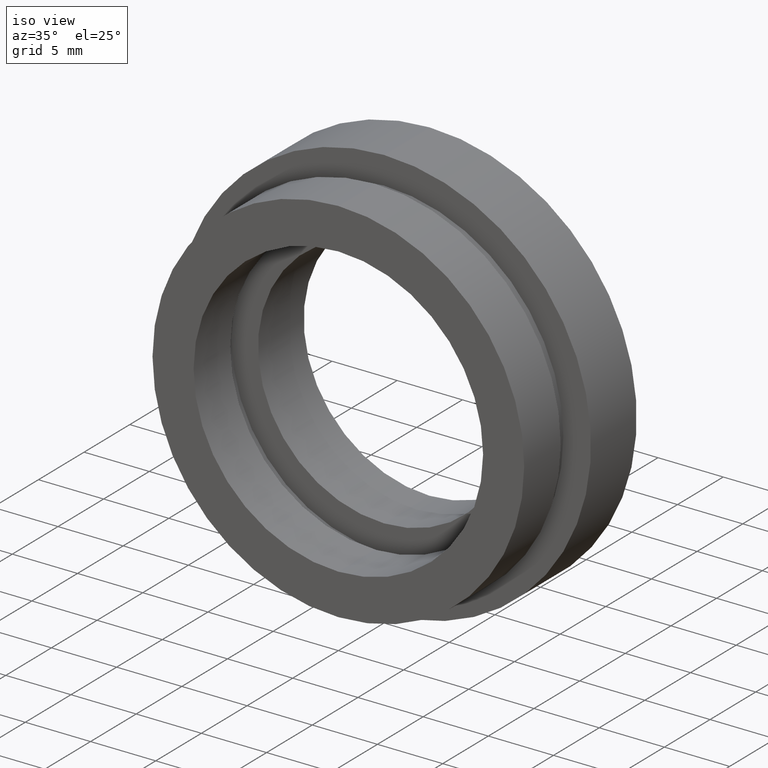
[diagram: clean part render]
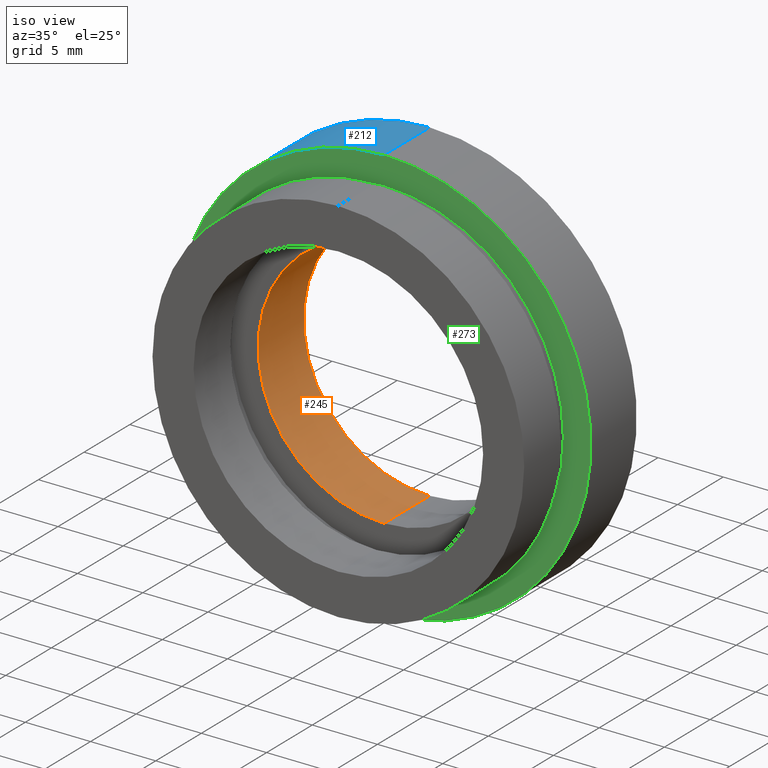
[diagram: same view with three faces highlighted in distinct colors, each labeled with its STEP entity id]
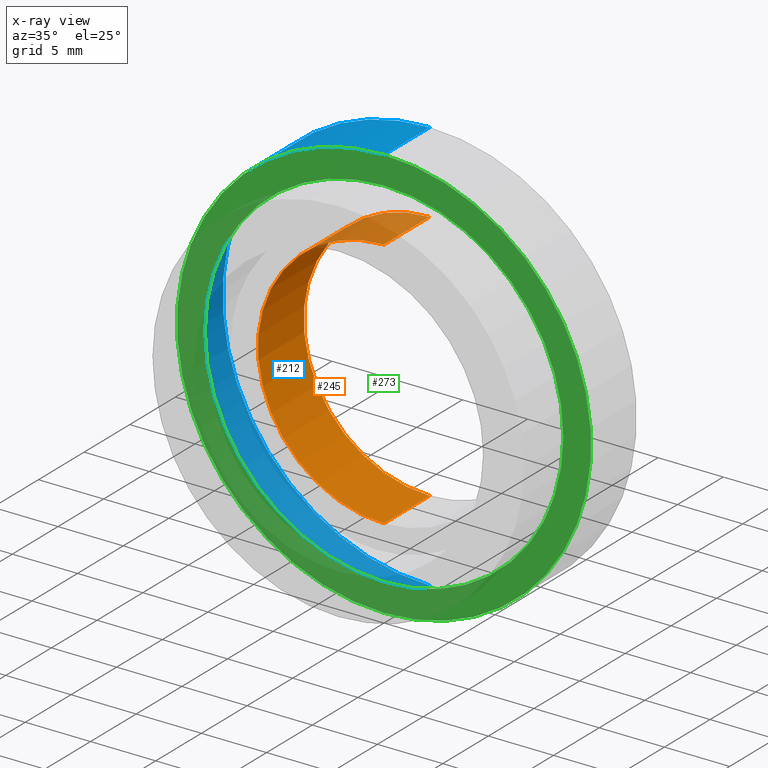
[diagram: x-ray of the same camera — body ghosted, the three highlighted faces saturated]
A machine part, iso view with three faces highlighted in distinct colors.
The next image is the same camera in x-ray (body ghosted, the three faces saturated) — at least one of them is partly hidden behind the body in this view.
Their STEP definitions:

[orange] entity #245 — the highlighted cylindrical surface (partial cylindrical patch) has radius 9.66 mm, axis along (-0, 1, -0).
#2 = ORIENTED_EDGE ( 'NONE', *, *, #137, .T. ) ;
#9 = VERTEX_POINT ( 'NONE', #18 ) ;
#18 = CARTESIAN_POINT ( 'NONE',  ( 0.0000000000000000000, 9.999999999999998200, 9.660000000000000100 ) ) ;
#37 = ORIENTED_EDGE ( 'NONE', *, *, #304, .T. ) ;
#41 = EDGE_CURVE ( 'NONE', #373, #521, #420, .T. ) ;
#58 = LINE ( 'NONE', #429, #509 ) ;
#67 = DIRECTION ( 'NONE',  ( -0.0000000000000000000, 1.000000000000000000, -0.0000000000000000000 ) ) ;
#83 = VERTEX_POINT ( 'NONE', #217 ) ;
#108 = CIRCLE ( 'NONE', #311, 9.660000000000000100 ) ;
#137 = EDGE_CURVE ( 'NONE', #83, #9, #108, .T. ) ;
#167 = DIRECTION ( 'NONE',  ( 0.0000000000000000000, 0.0000000000000000000, 1.000000000000000000 ) ) ;
#186 = CARTESIAN_POINT ( 'NONE',  ( 0.0000000000000000000, 13.74468085106383300, 0.0000000000000000000 ) ) ;
#197 = CARTESIAN_POINT ( 'NONE',  ( 1.183008807976343300E-015, 5.000000000000000900, -9.660000000000000100 ) ) ;
#199 = AXIS2_PLACEMENT_3D ( 'NONE', #485, #324, #167 ) ;
#215 = CARTESIAN_POINT ( 'NONE',  ( 1.183008807976343300E-015, 13.74468085106383300, -9.660000000000000100 ) ) ;
#217 = CARTESIAN_POINT ( 'NONE',  ( 1.183008807976343300E-015, 9.999999999999998200, -9.660000000000000100 ) ) ;
#224 = VECTOR ( 'NONE', #363, 1000.000000000000000 ) ;
#245 = ADVANCED_FACE ( 'NONE', ( #424 ), #523, .F. ) ;
#291 = ORIENTED_EDGE ( 'NONE', *, *, #41, .F. ) ;
#304 = EDGE_CURVE ( 'NONE', #373, #83, #612, .T. ) ;
#311 = AXIS2_PLACEMENT_3D ( 'NONE', #545, #329, #437 ) ;
#324 = DIRECTION ( 'NONE',  ( -0.0000000000000000000, 1.000000000000000000, -0.0000000000000000000 ) ) ;
#329 = DIRECTION ( 'NONE',  ( -0.0000000000000000000, 1.000000000000000000, -0.0000000000000000000 ) ) ;
#336 = DIRECTION ( 'NONE',  ( -0.0000000000000000000, 1.000000000000000000, -0.0000000000000000000 ) ) ;
#363 = DIRECTION ( 'NONE',  ( -0.0000000000000000000, 1.000000000000000000, -0.0000000000000000000 ) ) ;
#373 = VERTEX_POINT ( 'NONE', #197 ) ;
#389 = ORIENTED_EDGE ( 'NONE', *, *, #578, .F. ) ;
#420 = CIRCLE ( 'NONE', #199, 9.660000000000000100 ) ;
#424 = FACE_OUTER_BOUND ( 'NONE', #495, .T. ) ;
#429 = CARTESIAN_POINT ( 'NONE',  ( 0.0000000000000000000, 13.74468085106383300, 9.660000000000000100 ) ) ;
#430 = AXIS2_PLACEMENT_3D ( 'NONE', #186, #67, #584 ) ;
#437 = DIRECTION ( 'NONE',  ( 0.0000000000000000000, 0.0000000000000000000, 1.000000000000000000 ) ) ;
#485 = CARTESIAN_POINT ( 'NONE',  ( 0.0000000000000000000, 5.000000000000000900, 0.0000000000000000000 ) ) ;
#495 = EDGE_LOOP ( 'NONE', ( #291, #37, #2, #389 ) ) ;
#509 = VECTOR ( 'NONE', #336, 1000.000000000000000 ) ;
#521 = VERTEX_POINT ( 'NONE', #548 ) ;
#523 = CYLINDRICAL_SURFACE ( 'NONE', #430, 9.660000000000000100 ) ;
#545 = CARTESIAN_POINT ( 'NONE',  ( 0.0000000000000000000, 9.999999999999998200, 0.0000000000000000000 ) ) ;
#548 = CARTESIAN_POINT ( 'NONE',  ( 0.0000000000000000000, 5.000000000000000900, 9.660000000000000100 ) ) ;
#578 = EDGE_CURVE ( 'NONE', #521, #9, #58, .T. ) ;
#584 = DIRECTION ( 'NONE',  ( 0.0000000000000000000, 0.0000000000000000000, 1.000000000000000000 ) ) ;
#612 = LINE ( 'NONE', #215, #224 ) ;

[blue] entity #212 — the highlighted cylindrical surface (partial cylindrical patch) has radius 15.875 mm, axis along (-0, 1, -0).
#6 = VECTOR ( 'NONE', #512, 1000.000000000000000 ) ;
#26 = EDGE_CURVE ( 'NONE', #592, #357, #28, .T. ) ;
#28 = LINE ( 'NONE', #285, #243 ) ;
#62 = DIRECTION ( 'NONE',  ( -0.0000000000000000000, 1.000000000000000000, -0.0000000000000000000 ) ) ;
#74 = CARTESIAN_POINT ( 'NONE',  ( 0.0000000000000000000, 10.00000000000000000, 15.87500000000000000 ) ) ;
#126 = CARTESIAN_POINT ( 'NONE',  ( 1.944126793646423200E-015, 13.74468085106383300, -15.87500000000000000 ) ) ;
#129 = EDGE_LOOP ( 'NONE', ( #503, #541, #246, #151 ) ) ;
#130 = LINE ( 'NONE', #126, #6 ) ;
#134 = CARTESIAN_POINT ( 'NONE',  ( 1.944126793646423200E-015, 10.00000000000000000, -15.87500000000000000 ) ) ;
#151 = ORIENTED_EDGE ( 'NONE', *, *, #230, .F. ) ;
#152 = CARTESIAN_POINT ( 'NONE',  ( 0.0000000000000000000, 13.74468085106383300, 0.0000000000000000000 ) ) ;
#153 = DIRECTION ( 'NONE',  ( 0.0000000000000000000, 0.0000000000000000000, 1.000000000000000000 ) ) ;
#187 = AXIS2_PLACEMENT_3D ( 'NONE', #152, #213, #552 ) ;
#211 = VERTEX_POINT ( 'NONE', #134 ) ;
#212 = ADVANCED_FACE ( 'NONE', ( #299 ), #413, .T. ) ;
#213 = DIRECTION ( 'NONE',  ( -0.0000000000000000000, 1.000000000000000000, -0.0000000000000000000 ) ) ;
#230 = EDGE_CURVE ( 'NONE', #211, #357, #294, .T. ) ;
#243 = VECTOR ( 'NONE', #62, 1000.000000000000000 ) ;
#246 = ORIENTED_EDGE ( 'NONE', *, *, #26, .T. ) ;
#278 = CIRCLE ( 'NONE', #334, 15.87500000000000000 ) ;
#279 = CARTESIAN_POINT ( 'NONE',  ( 0.0000000000000000000, 5.000000000000000900, 15.87500000000000000 ) ) ;
#285 = CARTESIAN_POINT ( 'NONE',  ( 0.0000000000000000000, 13.74468085106383300, 15.87500000000000000 ) ) ;
#294 = CIRCLE ( 'NONE', #475, 15.87500000000000000 ) ;
#299 = FACE_OUTER_BOUND ( 'NONE', #129, .T. ) ;
#334 = AXIS2_PLACEMENT_3D ( 'NONE', #498, #490, #153 ) ;
#357 = VERTEX_POINT ( 'NONE', #74 ) ;
#368 = EDGE_CURVE ( 'NONE', #615, #211, #130, .T. ) ;
#398 = CARTESIAN_POINT ( 'NONE',  ( 1.944126793646423200E-015, 5.000000000000000900, -15.87500000000000000 ) ) ;
#413 = CYLINDRICAL_SURFACE ( 'NONE', #187, 15.87500000000000000 ) ;
#449 = EDGE_CURVE ( 'NONE', #615, #592, #278, .T. ) ;
#464 = DIRECTION ( 'NONE',  ( 0.0000000000000000000, 0.0000000000000000000, 1.000000000000000000 ) ) ;
#475 = AXIS2_PLACEMENT_3D ( 'NONE', #588, #590, #464 ) ;
#490 = DIRECTION ( 'NONE',  ( -0.0000000000000000000, 1.000000000000000000, -0.0000000000000000000 ) ) ;
#498 = CARTESIAN_POINT ( 'NONE',  ( 0.0000000000000000000, 5.000000000000000900, 0.0000000000000000000 ) ) ;
#503 = ORIENTED_EDGE ( 'NONE', *, *, #368, .F. ) ;
#512 = DIRECTION ( 'NONE',  ( -0.0000000000000000000, 1.000000000000000000, -0.0000000000000000000 ) ) ;
#541 = ORIENTED_EDGE ( 'NONE', *, *, #449, .T. ) ;
#552 = DIRECTION ( 'NONE',  ( 0.0000000000000000000, 0.0000000000000000000, 1.000000000000000000 ) ) ;
#588 = CARTESIAN_POINT ( 'NONE',  ( 0.0000000000000000000, 10.00000000000000000, 0.0000000000000000000 ) ) ;
#590 = DIRECTION ( 'NONE',  ( -0.0000000000000000000, 1.000000000000000000, -0.0000000000000000000 ) ) ;
#592 = VERTEX_POINT ( 'NONE', #279 ) ;
#615 = VERTEX_POINT ( 'NONE', #398 ) ;

[green] entity #273 — the highlighted planar face has unit normal (-0, 1, 0).
#12 = AXIS2_PLACEMENT_3D ( 'NONE', #497, #574, #176 ) ;
#22 = CIRCLE ( 'NONE', #177, 15.87500000000000000 ) ;
#23 = EDGE_LOOP ( 'NONE', ( #30, #610 ) ) ;
#30 = ORIENTED_EDGE ( 'NONE', *, *, #565, .T. ) ;
#34 = CIRCLE ( 'NONE', #620, 13.75000000000000000 ) ;
#46 = ORIENTED_EDGE ( 'NONE', *, *, #63, .F. ) ;
#63 = EDGE_CURVE ( 'NONE', #592, #615, #22, .T. ) ;
#66 = PLANE ( 'NONE',  #12 ) ;
#71 = DIRECTION ( 'NONE',  ( -0.0000000000000000000, 1.000000000000000000, -0.0000000000000000000 ) ) ;
#92 = EDGE_CURVE ( 'NONE', #218, #390, #397, .T. ) ;
#150 = DIRECTION ( 'NONE',  ( 0.0000000000000000000, 0.0000000000000000000, 1.000000000000000000 ) ) ;
#153 = DIRECTION ( 'NONE',  ( 0.0000000000000000000, 0.0000000000000000000, 1.000000000000000000 ) ) ;
#176 = DIRECTION ( 'NONE',  ( 0.0000000000000000000, 0.0000000000000000000, 1.000000000000000000 ) ) ;
#177 = AXIS2_PLACEMENT_3D ( 'NONE', #576, #195, #216 ) ;
#181 = ORIENTED_EDGE ( 'NONE', *, *, #449, .F. ) ;
#195 = DIRECTION ( 'NONE',  ( -0.0000000000000000000, 1.000000000000000000, -0.0000000000000000000 ) ) ;
#207 = AXIS2_PLACEMENT_3D ( 'NONE', #208, #71, #150 ) ;
#208 = CARTESIAN_POINT ( 'NONE',  ( 0.0000000000000000000, 4.999999999999999100, 0.0000000000000000000 ) ) ;
#216 = DIRECTION ( 'NONE',  ( 0.0000000000000000000, 0.0000000000000000000, 1.000000000000000000 ) ) ;
#218 = VERTEX_POINT ( 'NONE', #606 ) ;
#237 = CARTESIAN_POINT ( 'NONE',  ( 0.0000000000000000000, 4.999999999999999100, 13.75000000000000000 ) ) ;
#273 = ADVANCED_FACE ( 'NONE', ( #338, #549 ), #66, .F. ) ;
#278 = CIRCLE ( 'NONE', #334, 15.87500000000000000 ) ;
#279 = CARTESIAN_POINT ( 'NONE',  ( 0.0000000000000000000, 5.000000000000000900, 15.87500000000000000 ) ) ;
#334 = AXIS2_PLACEMENT_3D ( 'NONE', #498, #490, #153 ) ;
#338 = FACE_OUTER_BOUND ( 'NONE', #403, .T. ) ;
#382 = DIRECTION ( 'NONE',  ( 0.0000000000000000000, 0.0000000000000000000, 1.000000000000000000 ) ) ;
#390 = VERTEX_POINT ( 'NONE', #237 ) ;
#397 = CIRCLE ( 'NONE', #207, 13.75000000000000000 ) ;
#398 = CARTESIAN_POINT ( 'NONE',  ( 1.944126793646423200E-015, 5.000000000000000900, -15.87500000000000000 ) ) ;
#403 = EDGE_LOOP ( 'NONE', ( #46, #181 ) ) ;
#449 = EDGE_CURVE ( 'NONE', #615, #592, #278, .T. ) ;
#490 = DIRECTION ( 'NONE',  ( -0.0000000000000000000, 1.000000000000000000, -0.0000000000000000000 ) ) ;
#497 = CARTESIAN_POINT ( 'NONE',  ( 15.87500000000000000, 4.999999999999999100, 0.0000000000000000000 ) ) ;
#498 = CARTESIAN_POINT ( 'NONE',  ( 0.0000000000000000000, 5.000000000000000900, 0.0000000000000000000 ) ) ;
#526 = DIRECTION ( 'NONE',  ( -0.0000000000000000000, 1.000000000000000000, -0.0000000000000000000 ) ) ;
#533 = CARTESIAN_POINT ( 'NONE',  ( 0.0000000000000000000, 4.999999999999999100, 0.0000000000000000000 ) ) ;
#549 = FACE_BOUND ( 'NONE', #23, .T. ) ;
#565 = EDGE_CURVE ( 'NONE', #390, #218, #34, .T. ) ;
#574 = DIRECTION ( 'NONE',  ( -0.0000000000000000000, 1.000000000000000000, 0.0000000000000000000 ) ) ;
#576 = CARTESIAN_POINT ( 'NONE',  ( 0.0000000000000000000, 5.000000000000000900, 0.0000000000000000000 ) ) ;
#592 = VERTEX_POINT ( 'NONE', #279 ) ;
#606 = CARTESIAN_POINT ( 'NONE',  ( 1.683889348827610700E-015, 4.999999999999999100, -13.75000000000000000 ) ) ;
#610 = ORIENTED_EDGE ( 'NONE', *, *, #92, .T. ) ;
#615 = VERTEX_POINT ( 'NONE', #398 ) ;
#620 = AXIS2_PLACEMENT_3D ( 'NONE', #533, #526, #382 ) ;